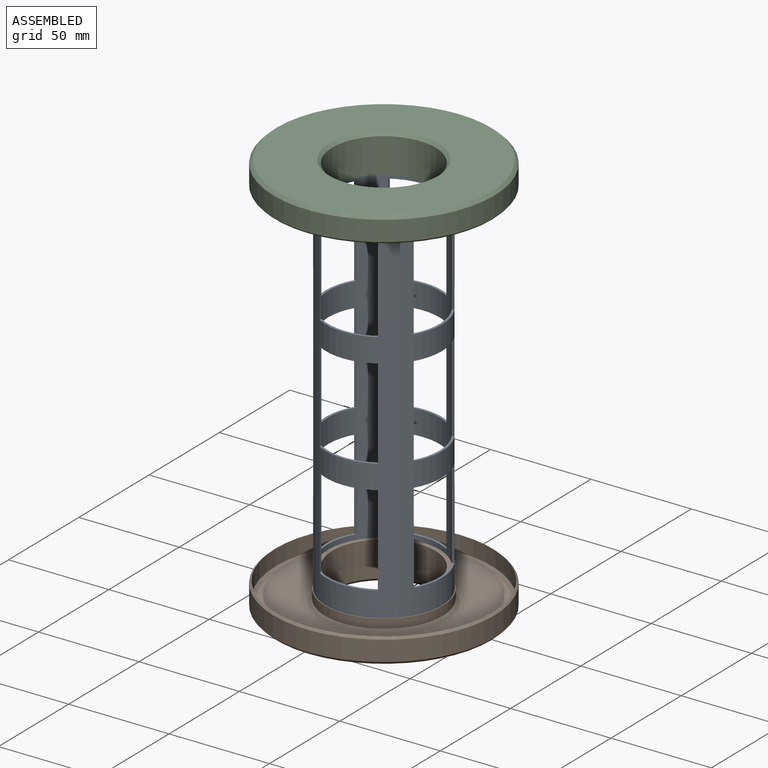
[diagram: assembled view]
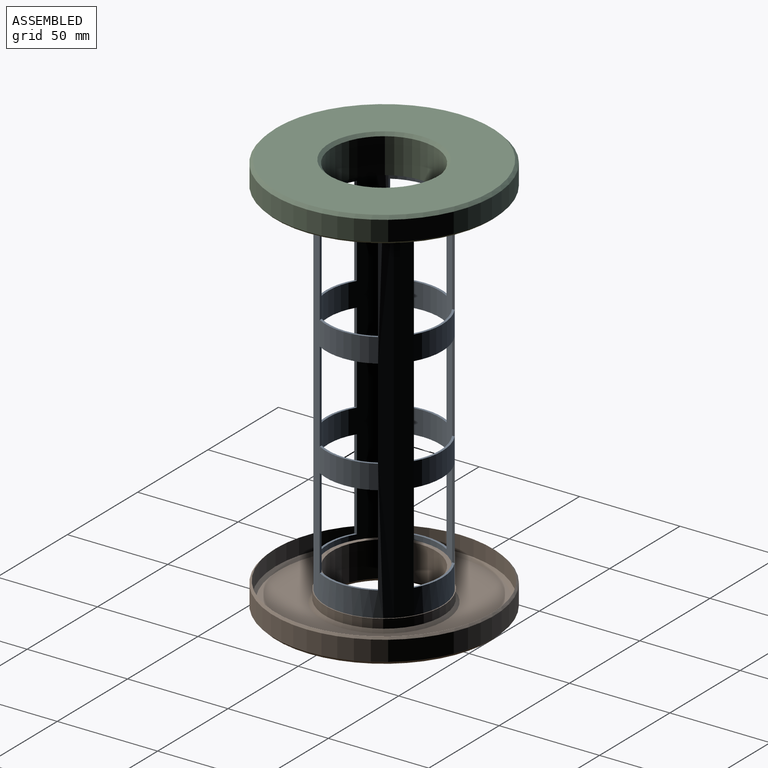
[diagram: assembled view, second angle]
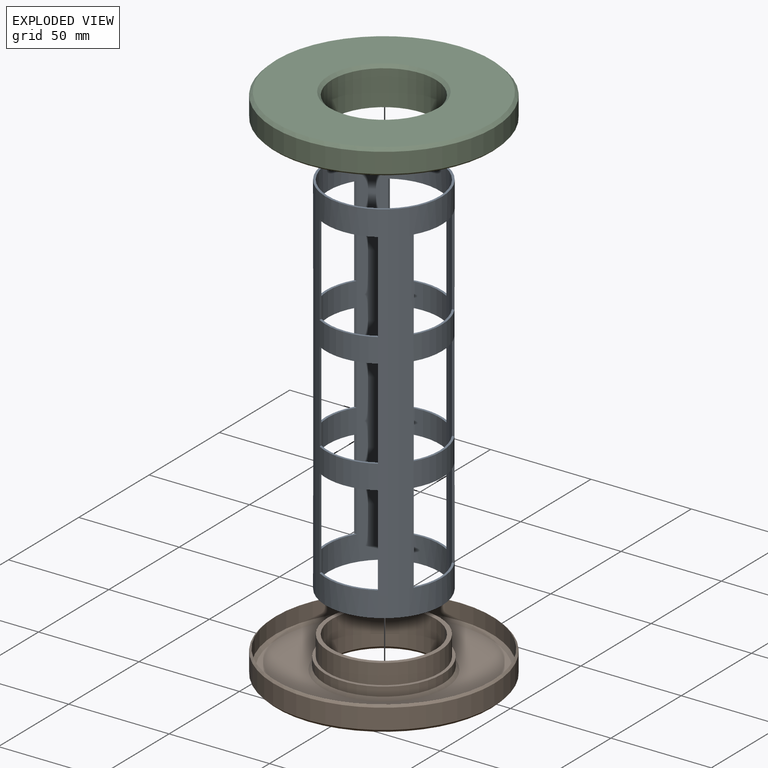
[diagram: exploded view]
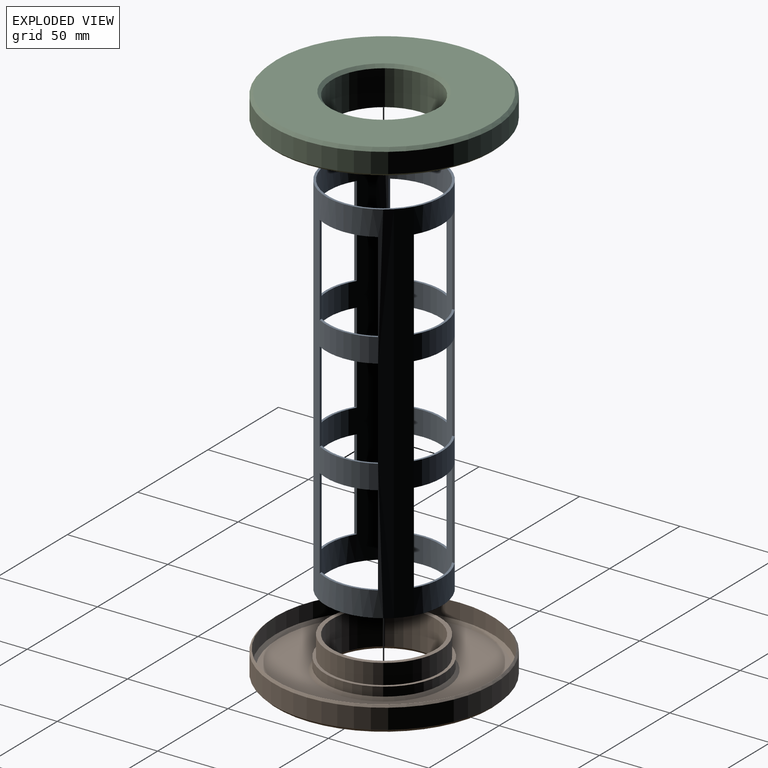
[diagram: exploded view, second angle]
ASSEMBLY  parts=3 mates=2
PART A: 52 faces, bbox 57.8x57.8x184 mm
  f0: cylinder r=27.8mm len=184mm, axis (0,0,-1), area 15665.4mm2, adj f2,f3,f4,f5,f6,f7,f8,f9
  f1: cylinder r=28.9mm len=184mm, axis (0,0,-1), area 17006.5mm2, adj f2,f3,f4,f5,f6,f7,f8,f9
  f2: plane 57.8x57.8mm, normal (0,0,1), area 195.9mm2, adj f0,f1
  f3: plane 57.8x57.8mm, normal (0,0,-1), area 195.9mm2, adj f0,f1
  f4: plane 45x1.28mm, normal (1,0,0), area 57.6mm2, adj f0,f1,f5,f7
  f5: plane 29x5.18mm, normal (0,0,-1), area 33.5mm2, adj f0,f1,f4,f6
  f6: plane 45x1.28mm, normal (-1,0,0), area 57.6mm2, adj f0,f1,f5,f7
  f7: plane 29x5.18mm, normal (0,0,1), area 33.5mm2, adj f0,f1,f4,f6
  f8: plane 29x5.18mm, normal (0,0,1), area 33.5mm2, adj f0,f1,f9,f11
  f9: plane 45x1.28mm, normal (-1,0,0), area 57.6mm2, adj f0,f1,f8,f10
  f10: plane 29x5.18mm, normal (0,0,-1), area 33.5mm2, adj f0,f1,f9,f11
  f11: plane 45x1.28mm, normal (1,0,0), area 57.6mm2, adj f0,f1,f8,f10
  f12: plane 45x1.28mm, normal (1,0,0), area 57.6mm2, adj f0,f1,f13,f15
  f13: plane 29x5.18mm, normal (0,0,-1), area 33.5mm2, adj f0,f1,f12,f14
  f14: plane 45x1.28mm, normal (-1,0,0), area 57.6mm2, adj f0,f1,f13,f15
  f15: plane 29x5.18mm, normal (0,0,1), area 33.5mm2, adj f0,f1,f12,f14
  f16: plane 29x5.18mm, normal (0,0,1), area 33.5mm2, adj f0,f1,f17,f19
  f17: plane 45x1.28mm, normal (-1,0,0), area 57.6mm2, adj f0,f1,f16,f18
  f18: plane 29x5.18mm, normal (0,0,-1), area 33.5mm2, adj f0,f1,f17,f19
  f19: plane 45x1.28mm, normal (1,0,0), area 57.6mm2, adj f0,f1,f16,f18
  f20: plane 45x1.28mm, normal (1,0,0), area 57.6mm2, adj f0,f1,f21,f23
  f21: plane 29x5.18mm, normal (0,0,-1), area 33.5mm2, adj f0,f1,f20,f22
  f22: plane 45x1.28mm, normal (-1,0,0), area 57.6mm2, adj f0,f1,f21,f23
  f23: plane 29x5.18mm, normal (0,0,1), area 33.5mm2, adj f0,f1,f20,f22
  f24: plane 29x5.18mm, normal (0,0,1), area 33.5mm2, adj f0,f1,f25,f27
  f25: plane 45x1.28mm, normal (-1,0,0), area 57.6mm2, adj f0,f1,f24,f26
  f26: plane 29x5.18mm, normal (0,0,-1), area 33.5mm2, adj f0,f1,f25,f27
  f27: plane 45x1.28mm, normal (1,0,0), area 57.6mm2, adj f0,f1,f24,f26
  f28: plane 45x1.28mm, normal (0,-1,0), area 57.6mm2, adj f0,f1,f29,f31
  f29: plane 29x5.18mm, normal (0,0,-1), area 33.5mm2, adj f0,f1,f28,f30
  f30: plane 45x1.28mm, normal (0,1,0), area 57.6mm2, adj f0,f1,f29,f31
  f31: plane 29x5.18mm, normal (0,0,1), area 33.5mm2, adj f0,f1,f28,f30
  f32: plane 29x5.18mm, normal (0,0,1), area 33.5mm2, adj f0,f1,f33,f35
  f33: plane 45x1.28mm, normal (0,1,0), area 57.6mm2, adj f0,f1,f32,f34
  f34: plane 29x5.18mm, normal (0,0,-1), area 33.5mm2, adj f0,f1,f33,f35
  f35: plane 45x1.28mm, normal (0,-1,0), area 57.6mm2, adj f0,f1,f32,f34
  f36: plane 45x1.28mm, normal (0,-1,0), area 57.6mm2, adj f0,f1,f37,f39
  f37: plane 29x5.18mm, normal (0,0,-1), area 33.5mm2, adj f0,f1,f36,f38
  f38: plane 45x1.28mm, normal (0,1,0), area 57.6mm2, adj f0,f1,f37,f39
  f39: plane 29x5.18mm, normal (0,0,1), area 33.5mm2, adj f0,f1,f36,f38
  f40: plane 29x5.18mm, normal (0,0,1), area 33.5mm2, adj f0,f1,f41,f43
  f41: plane 45x1.28mm, normal (0,1,0), area 57.6mm2, adj f0,f1,f40,f42
  f42: plane 29x5.18mm, normal (0,0,-1), area 33.5mm2, adj f0,f1,f41,f43
  f43: plane 45x1.28mm, normal (0,-1,0), area 57.6mm2, adj f0,f1,f40,f42
  f44: plane 45x1.28mm, normal (0,-1,0), area 57.6mm2, adj f0,f1,f45,f47
  f45: plane 29x5.18mm, normal (0,0,-1), area 33.5mm2, adj f0,f1,f44,f46
  f46: plane 45x1.28mm, normal (0,1,0), area 57.6mm2, adj f0,f1,f45,f47
  f47: plane 29x5.18mm, normal (0,0,1), area 33.5mm2, adj f0,f1,f44,f46
  f48: plane 29x5.18mm, normal (0,0,1), area 33.5mm2, adj f0,f1,f49,f51
  f49: plane 45x1.28mm, normal (0,1,0), area 57.6mm2, adj f0,f1,f48,f50
  f50: plane 29x5.18mm, normal (0,0,-1), area 33.5mm2, adj f0,f1,f49,f51
  f51: plane 45x1.28mm, normal (0,-1,0), area 57.6mm2, adj f0,f1,f48,f50
PART B: 14 faces, bbox 110x110x19 mm
  f0: plane 107x107mm, normal (0,0,1), area 6659.2mm2, adj f10,f11
  f1: cylinder r=25.75mm len=51.5mm, axis (0,0,1), area 2831.4mm2, adj f2,f11
  f2: plane 55.6x55.6mm, normal (0,0,-1), area 344.9mm2, adj f1,f3
  f3: cylinder r=27.8mm len=55.6mm, axis (0,0,1), area 1746.7mm2, adj f2,f4
  f4: plane 58.6x58.6mm, normal (0,0,-1), area 269.1mm2, adj f3,f5
  f5: cylinder r=29.3mm len=58.6mm, axis (0,0,1), area 828.4mm2, adj f4,f12
  f6: plane 105x105mm, normal (0,0,-1), area 5678.8mm2, adj f12,f13
  f7: cylinder r=54mm len=108mm, axis (0,0,1), area 2714.3mm2, adj f9,f13
  f8: cylinder r=55mm len=110mm, axis (0,0,1), area 3455.8mm2, adj f9,f10
  f9: cone r=55mm half-angle=45deg, axis (0,0,1), area 484.3mm2, adj f7,f8
  f10: cone r=53.5mm half-angle=45deg, axis (0,0,-1), area 723.1mm2, adj f0,f8
  f11: cone r=25.75mm half-angle=45deg, axis (0,0,1), area 353.2mm2, adj f0,f1
  f12: cone r=30.8mm half-angle=45deg, axis (0,0,1), area 400.5mm2, adj f5,f6
  f13: cone r=54mm half-angle=45deg, axis (0,0,-1), area 709.8mm2, adj f6,f7
PART C: same geometry as B
PLACE A t=(-105.34,-11,-17.27)mm
PLACE B rot(axis=(1,0,0),180deg) t=(-105.34,-11,-26.27)mm
PLACE C t=(-105.34,-11,175.73)mm
MATE cylindrical B.f1 <-> A.f0  axis (0,0,1) through (-105.34,-11,-17.27)mm
MATE cylindrical C.f1 <-> A.f0  axis (0,0,-1) through (-105.34,-11,166.73)mm
